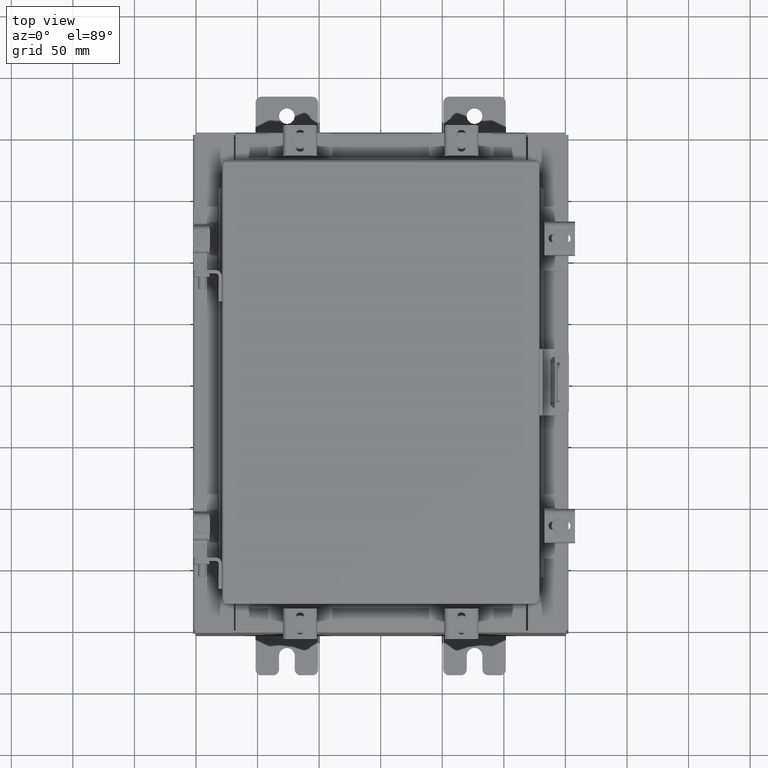
[diagram: clean part render]
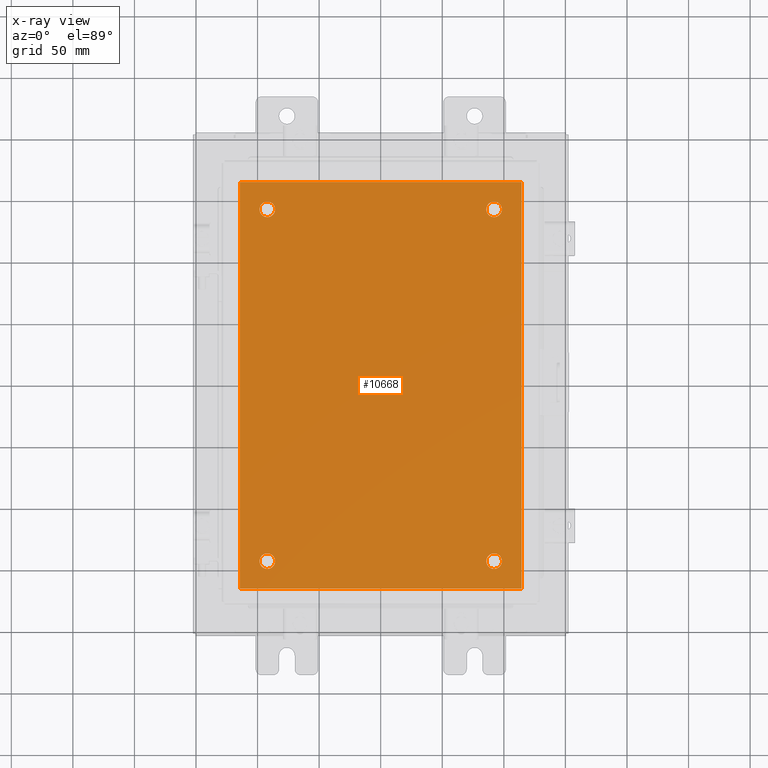
[diagram: x-ray — body ghosted, one internal face saturated and labeled with its STEP entity id]
A machine part, top view, then the same camera in x-ray: the body is ghosted and one INTERNAL B-rep face — a face not visible from any outside direction — is saturated and labeled: STEP entity #10668.
In plain terms, the highlighted planar face has unit normal (0, 0, -1).
Its self-contained STEP definition (entity closure, byte-faithful):
#14 = VERTEX_POINT ( 'NONE', #17996 ) ;
#24 = CARTESIAN_POINT ( 'NONE',  ( -3.625000000000000400, -5.625000000000003600, -0.1040000000000000400 ) ) ;
#214 = DIRECTION ( 'NONE',  ( -1.000000000000000000, 0.0000000000000000000, 0.0000000000000000000 ) ) ;
#728 = FACE_BOUND ( 'NONE', #2799, .T. ) ;
#1189 = EDGE_LOOP ( 'NONE', ( #10368, #11027 ) ) ;
#1268 = AXIS2_PLACEMENT_3D ( 'NONE', #1744, #16832, #15595 ) ;
#1334 = EDGE_CURVE ( 'NONE', #15630, #15028, #18278, .T. ) ;
#1647 = DIRECTION ( 'NONE',  ( -0.0000000000000000000, -0.0000000000000000000, 1.000000000000000000 ) ) ;
#1684 = VECTOR ( 'NONE', #10643, 39.37007874015748100 ) ;
#1744 = CARTESIAN_POINT ( 'NONE',  ( 3.625000000000000400, 5.625000000000003600, -0.1040000000000000400 ) ) ;
#1824 = VERTEX_POINT ( 'NONE', #2289 ) ;
#1992 = ORIENTED_EDGE ( 'NONE', *, *, #7070, .F. ) ;
#2084 = VECTOR ( 'NONE', #15676, 39.37007874015748100 ) ;
#2289 = CARTESIAN_POINT ( 'NONE',  ( 3.874999999999999100, 5.625000000000003600, -0.1040000000000000400 ) ) ;
#2490 = CARTESIAN_POINT ( 'NONE',  ( 3.375000000000001800, -5.625000000000003600, -0.1040000000000000400 ) ) ;
#2585 = AXIS2_PLACEMENT_3D ( 'NONE', #10515, #12619, #8338 ) ;
#2630 = EDGE_CURVE ( 'NONE', #5885, #15113, #12989, .T. ) ;
#2741 = CIRCLE ( 'NONE', #3944, 0.2499999999999987000 ) ;
#2799 = EDGE_LOOP ( 'NONE', ( #7012, #15575 ) ) ;
#2900 = ORIENTED_EDGE ( 'NONE', *, *, #4715, .T. ) ;
#2967 = CARTESIAN_POINT ( 'NONE',  ( -3.875000000000000000, -5.625000000000003600, -0.1040000000000000400 ) ) ;
#3071 = ORIENTED_EDGE ( 'NONE', *, *, #1334, .F. ) ;
#3624 = DIRECTION ( 'NONE',  ( -1.000000000000000000, 0.0000000000000000000, 0.0000000000000000000 ) ) ;
#3944 = AXIS2_PLACEMENT_3D ( 'NONE', #15545, #6026, #17149 ) ;
#3984 = VERTEX_POINT ( 'NONE', #2490 ) ;
#4007 = EDGE_LOOP ( 'NONE', ( #13279, #2900 ) ) ;
#4180 = EDGE_LOOP ( 'NONE', ( #17213, #10978 ) ) ;
#4184 = DIRECTION ( 'NONE',  ( -0.0000000000000000000, -0.0000000000000000000, 1.000000000000000000 ) ) ;
#4292 = CARTESIAN_POINT ( 'NONE',  ( 3.874999999999999100, -5.625000000000003600, -0.1040000000000000400 ) ) ;
#4678 = DIRECTION ( 'NONE',  ( -1.000000000000000000, 0.0000000000000000000, 0.0000000000000000000 ) ) ;
#4685 = EDGE_CURVE ( 'NONE', #11918, #1824, #9177, .T. ) ;
#4715 = EDGE_CURVE ( 'NONE', #15684, #16456, #11893, .T. ) ;
#4916 = DIRECTION ( 'NONE',  ( -0.0000000000000000000, -0.0000000000000000000, 1.000000000000000000 ) ) ;
#5010 = CARTESIAN_POINT ( 'NONE',  ( -3.625000000000000400, 5.625000000000003600, -0.1040000000000000400 ) ) ;
#5101 = FACE_BOUND ( 'NONE', #4180, .T. ) ;
#5171 = AXIS2_PLACEMENT_3D ( 'NONE', #24, #1647, #20842 ) ;
#5828 = DIRECTION ( 'NONE',  ( 0.0000000000000000000, 0.0000000000000000000, -1.000000000000000000 ) ) ;
#5856 = VECTOR ( 'NONE', #15037, 39.37007874015748100 ) ;
#5885 = VERTEX_POINT ( 'NONE', #20061 ) ;
#5892 = DIRECTION ( 'NONE',  ( -1.000000000000000000, 0.0000000000000000000, -0.0000000000000000000 ) ) ;
#6026 = DIRECTION ( 'NONE',  ( -0.0000000000000000000, -0.0000000000000000000, 1.000000000000000000 ) ) ;
#6099 = PLANE ( 'NONE',  #16118 ) ;
#6128 = CARTESIAN_POINT ( 'NONE',  ( 4.500000000000001800, 6.500000000000000900, -0.1040000000000000400 ) ) ;
#6363 = CARTESIAN_POINT ( 'NONE',  ( 0.0000000000000000000, 0.0000000000000000000, -0.1040000000000000400 ) ) ;
#6454 = LINE ( 'NONE', #19118, #2084 ) ;
#7012 = ORIENTED_EDGE ( 'NONE', *, *, #2630, .T. ) ;
#7070 = EDGE_CURVE ( 'NONE', #15028, #14, #9119, .T. ) ;
#7321 = EDGE_CURVE ( 'NONE', #16456, #15684, #20694, .T. ) ;
#7436 = DIRECTION ( 'NONE',  ( -0.0000000000000000000, -0.0000000000000000000, 1.000000000000000000 ) ) ;
#7762 = DIRECTION ( 'NONE',  ( -0.0000000000000000000, -0.0000000000000000000, 1.000000000000000000 ) ) ;
#8338 = DIRECTION ( 'NONE',  ( -1.000000000000000000, 0.0000000000000000000, 0.0000000000000000000 ) ) ;
#8763 = CARTESIAN_POINT ( 'NONE',  ( 3.625000000000000400, 5.625000000000003600, -0.1040000000000000400 ) ) ;
#9025 = ORIENTED_EDGE ( 'NONE', *, *, #12580, .F. ) ;
#9119 = LINE ( 'NONE', #15358, #5856 ) ;
#9134 = EDGE_CURVE ( 'NONE', #15113, #5885, #9443, .T. ) ;
#9177 = CIRCLE ( 'NONE', #12686, 0.2499999999999987000 ) ;
#9443 = CIRCLE ( 'NONE', #2585, 0.2499999999999998100 ) ;
#9991 = LINE ( 'NONE', #19716, #15176 ) ;
#10368 = ORIENTED_EDGE ( 'NONE', *, *, #13021, .T. ) ;
#10515 = CARTESIAN_POINT ( 'NONE',  ( -3.625000000000000400, 5.625000000000003600, -0.1040000000000000400 ) ) ;
#10643 = DIRECTION ( 'NONE',  ( -1.000000000000000000, -0.0000000000000000000, -0.0000000000000000000 ) ) ;
#10668 = ADVANCED_FACE ( 'NONE', ( #17302, #5101, #14088, #728, #13099 ), #6099, .T. ) ;
#10978 = ORIENTED_EDGE ( 'NONE', *, *, #18663, .T. ) ;
#11027 = ORIENTED_EDGE ( 'NONE', *, *, #4685, .T. ) ;
#11077 = CARTESIAN_POINT ( 'NONE',  ( -4.499999999999998200, 6.500000000000000900, -0.1040000000000000400 ) ) ;
#11089 = EDGE_LOOP ( 'NONE', ( #9025, #16220, #1992, #3071 ) ) ;
#11832 = EDGE_CURVE ( 'NONE', #14, #19212, #9991, .T. ) ;
#11893 = CIRCLE ( 'NONE', #12025, 0.2499999999999998100 ) ;
#11918 = VERTEX_POINT ( 'NONE', #20560 ) ;
#12025 = AXIS2_PLACEMENT_3D ( 'NONE', #19898, #7436, #3624 ) ;
#12580 = EDGE_CURVE ( 'NONE', #19212, #15630, #6454, .T. ) ;
#12619 = DIRECTION ( 'NONE',  ( -0.0000000000000000000, -0.0000000000000000000, 1.000000000000000000 ) ) ;
#12686 = AXIS2_PLACEMENT_3D ( 'NONE', #8763, #4184, #214 ) ;
#12989 = CIRCLE ( 'NONE', #14169, 0.2499999999999998100 ) ;
#13021 = EDGE_CURVE ( 'NONE', #1824, #11918, #13153, .T. ) ;
#13099 = FACE_OUTER_BOUND ( 'NONE', #11089, .T. ) ;
#13153 = CIRCLE ( 'NONE', #1268, 0.2499999999999987000 ) ;
#13279 = ORIENTED_EDGE ( 'NONE', *, *, #7321, .T. ) ;
#14088 = FACE_BOUND ( 'NONE', #1189, .T. ) ;
#14169 = AXIS2_PLACEMENT_3D ( 'NONE', #5010, #4916, #4678 ) ;
#14249 = VERTEX_POINT ( 'NONE', #4292 ) ;
#14486 = CARTESIAN_POINT ( 'NONE',  ( -3.875000000000000000, 5.625000000000003600, -0.1040000000000000400 ) ) ;
#14759 = CARTESIAN_POINT ( 'NONE',  ( -4.499999999999998200, 6.500000000000000900, -0.1040000000000000400 ) ) ;
#14939 = AXIS2_PLACEMENT_3D ( 'NONE', #17252, #7762, #18892 ) ;
#15028 = VERTEX_POINT ( 'NONE', #11077 ) ;
#15037 = DIRECTION ( 'NONE',  ( -0.0000000000000000000, -1.000000000000000000, -0.0000000000000000000 ) ) ;
#15113 = VERTEX_POINT ( 'NONE', #14486 ) ;
#15125 = CARTESIAN_POINT ( 'NONE',  ( 4.500000000000001800, -6.499999999999999100, -0.1040000000000000400 ) ) ;
#15176 = VECTOR ( 'NONE', #19648, 39.37007874015748100 ) ;
#15253 = CIRCLE ( 'NONE', #14939, 0.2499999999999987000 ) ;
#15358 = CARTESIAN_POINT ( 'NONE',  ( -4.499999999999998200, -6.499999999999999100, -0.1040000000000000400 ) ) ;
#15545 = CARTESIAN_POINT ( 'NONE',  ( 3.625000000000000400, -5.625000000000003600, -0.1040000000000000400 ) ) ;
#15575 = ORIENTED_EDGE ( 'NONE', *, *, #9134, .T. ) ;
#15595 = DIRECTION ( 'NONE',  ( -1.000000000000000000, 0.0000000000000000000, 0.0000000000000000000 ) ) ;
#15630 = VERTEX_POINT ( 'NONE', #6128 ) ;
#15676 = DIRECTION ( 'NONE',  ( 0.0000000000000000000, 1.000000000000000000, 0.0000000000000000000 ) ) ;
#15684 = VERTEX_POINT ( 'NONE', #2967 ) ;
#16118 = AXIS2_PLACEMENT_3D ( 'NONE', #6363, #5828, #5892 ) ;
#16220 = ORIENTED_EDGE ( 'NONE', *, *, #11832, .F. ) ;
#16456 = VERTEX_POINT ( 'NONE', #16789 ) ;
#16789 = CARTESIAN_POINT ( 'NONE',  ( -3.375000000000000400, -5.625000000000003600, -0.1040000000000000400 ) ) ;
#16832 = DIRECTION ( 'NONE',  ( -0.0000000000000000000, -0.0000000000000000000, 1.000000000000000000 ) ) ;
#17149 = DIRECTION ( 'NONE',  ( -1.000000000000000000, 0.0000000000000000000, 0.0000000000000000000 ) ) ;
#17213 = ORIENTED_EDGE ( 'NONE', *, *, #19449, .T. ) ;
#17252 = CARTESIAN_POINT ( 'NONE',  ( 3.625000000000000400, -5.625000000000003600, -0.1040000000000000400 ) ) ;
#17302 = FACE_BOUND ( 'NONE', #4007, .T. ) ;
#17996 = CARTESIAN_POINT ( 'NONE',  ( -4.499999999999998200, -6.499999999999999100, -0.1040000000000000400 ) ) ;
#18278 = LINE ( 'NONE', #14759, #1684 ) ;
#18663 = EDGE_CURVE ( 'NONE', #3984, #14249, #2741, .T. ) ;
#18892 = DIRECTION ( 'NONE',  ( -1.000000000000000000, 0.0000000000000000000, 0.0000000000000000000 ) ) ;
#19118 = CARTESIAN_POINT ( 'NONE',  ( 4.500000000000001800, -6.499999999999999100, -0.1040000000000000400 ) ) ;
#19212 = VERTEX_POINT ( 'NONE', #15125 ) ;
#19449 = EDGE_CURVE ( 'NONE', #14249, #3984, #15253, .T. ) ;
#19648 = DIRECTION ( 'NONE',  ( 1.000000000000000000, 0.0000000000000000000, 0.0000000000000000000 ) ) ;
#19716 = CARTESIAN_POINT ( 'NONE',  ( -4.499999999999998200, -6.499999999999999100, -0.1040000000000000400 ) ) ;
#19898 = CARTESIAN_POINT ( 'NONE',  ( -3.625000000000000400, -5.625000000000003600, -0.1040000000000000400 ) ) ;
#20061 = CARTESIAN_POINT ( 'NONE',  ( -3.375000000000000400, 5.625000000000003600, -0.1040000000000000400 ) ) ;
#20560 = CARTESIAN_POINT ( 'NONE',  ( 3.375000000000001800, 5.625000000000003600, -0.1040000000000000400 ) ) ;
#20694 = CIRCLE ( 'NONE', #5171, 0.2499999999999998100 ) ;
#20842 = DIRECTION ( 'NONE',  ( -1.000000000000000000, 0.0000000000000000000, 0.0000000000000000000 ) ) ;